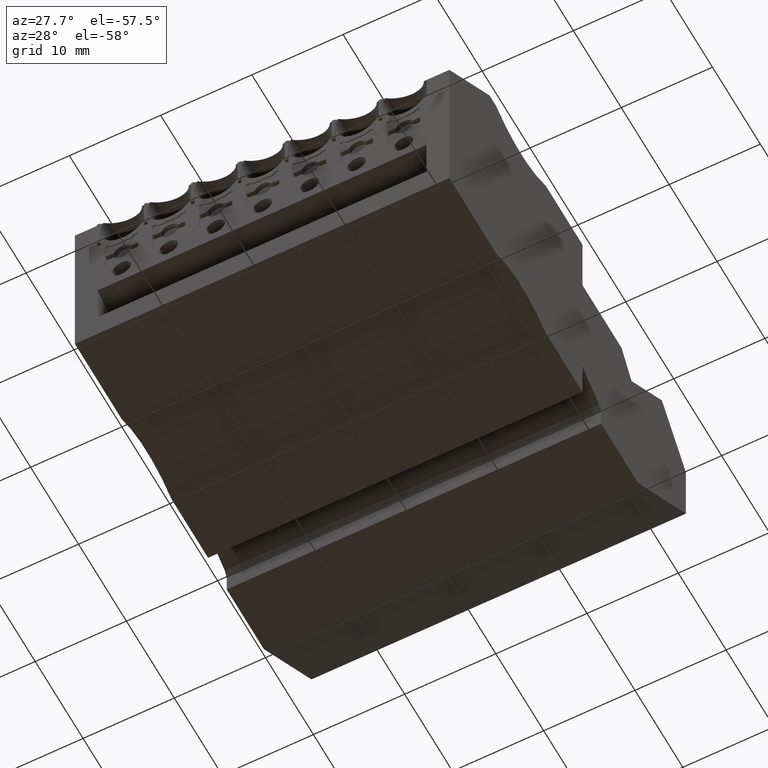
[diagram: clean part render]
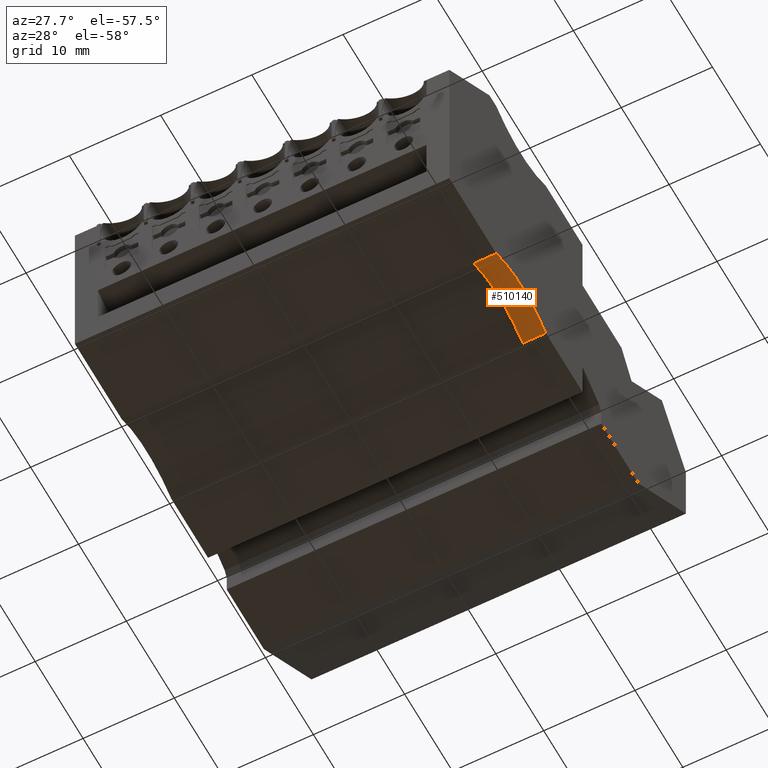
[diagram: same view with one face highlighted and labeled with its STEP entity id]
A machine part, auxiliary view. The second image highlights one B-rep face of the part: STEP entity #510140.
In plain terms, the highlighted cylindrical surface (partial cylindrical patch) has radius 10 mm, axis along (-1, -0, 0).
Its self-contained STEP definition (entity closure, byte-faithful):
#21610=CARTESIAN_POINT('',(430.260883745075,670.934347664516,
104.169999998335));
#21620=VERTEX_POINT('',#21610);
#21650=CARTESIAN_POINT('',(435.425728081343,662.371381882728,
104.169999996031));
#21660=DIRECTION('',(2.3809661542687E-10,4.1220396710112E-10,1.));
#21670=DIRECTION('',(1.,-1.20456372654242E-9,-2.38096614930344E-10));
#21680=AXIS2_PLACEMENT_3D('',#21650,#21660,#21670);
#21690=CIRCLE('',#21680,10.);
#21700=CARTESIAN_POINT('',(440.590572441332,670.934347652073,
104.169999997992));
#21710=VERTEX_POINT('',#21700);
#21720=EDGE_CURVE('',#21710,#21620,#21690,.T.);
#508750=CARTESIAN_POINT('',(440.590572462107,670.934347639186,
106.669999990763));
#508760=VERTEX_POINT('',#508750);
#508790=CARTESIAN_POINT('',(435.425728081938,662.371381883758,
106.669999995402));
#508800=DIRECTION('',(1.28100595517667E-10,4.64504649617954E-10,1.));
#508810=DIRECTION('',(0.707106782058739,0.707106780314356,
-4.19035115678159E-10));
#508820=AXIS2_PLACEMENT_3D('',#508790,#508800,#508810);
#508830=CIRCLE('',#508820,10.);
#508840=CARTESIAN_POINT('',(430.260883722372,670.934347651613,
106.669999992086));
#508850=VERTEX_POINT('',#508840);
#508860=EDGE_CURVE('',#508760,#508850,#508830,.T.);
#509650=CARTESIAN_POINT('',(435.425728081343,662.371381882728,
104.169999991406));
#509660=DIRECTION('',(-2.3809661542687E-10,-4.1220396710112E-10,-1.));
#509670=DIRECTION('',(1.,-1.20456367103126E-9,-2.38096347605881E-10));
#509680=AXIS2_PLACEMENT_3D('',#509650,#509660,#509670);
#509690=CYLINDRICAL_SURFACE('',#509680,10.);
#509700=CARTESIAN_POINT('',(432.124069181778,670.93434764837,
104.169999992563));
#509710=DIRECTION('',(1.20456578035086E-9,1.,-3.99255701708136E-10));
#509720=DIRECTION('',(1.,-1.20456578045502E-9,-2.60886165655907E-10));
#509730=AXIS2_PLACEMENT_3D('',#509700,#509710,#509720);
#509740=PLANE('',#509730);
#509750=CARTESIAN_POINT('',(430.26088372183,670.934347650615,
104.16999998911));
#509760=CARTESIAN_POINT('',(430.260883721875,670.934347650698,
104.378333322691));
#509770=CARTESIAN_POINT('',(430.26088372192,670.934347650781,
104.586666656273));
#509780=CARTESIAN_POINT('',(430.260883721966,670.934347650864,
104.794999989854));
#509790=CARTESIAN_POINT('',(430.260883722011,670.934347650947,
105.003333323435));
#509800=CARTESIAN_POINT('',(430.260883722056,670.934347651031,
105.211666657017));
#509810=CARTESIAN_POINT('',(430.260883722101,670.934347651114,
105.419999990598));
#509820=CARTESIAN_POINT('',(430.260883722146,670.934347651197,
105.628333324179));
#509830=CARTESIAN_POINT('',(430.260883722191,670.93434765128,
105.836666657761));
#509840=CARTESIAN_POINT('',(430.260883722236,670.934347651363,
106.044999991342));
#509850=CARTESIAN_POINT('',(430.260883722282,670.934347651447,
106.253333324923));
#509860=CARTESIAN_POINT('',(430.260883722327,670.93434765153,
106.461666658505));
#509870=CARTESIAN_POINT('',(430.260883722372,670.934347651613,
106.669999992086));
#509880=B_SPLINE_CURVE_WITH_KNOTS('',3,(#509750,#509760,#509770,#509780,
#509790,#509800,#509810,#509820,#509830,#509840,#509850,#509860,#509870)
,.UNSPECIFIED.,.F.,.F.,(4,3,3,3,4),(0.,0.625000000744052,
1.25000000148812,1.87500000223218,2.50000000297624),.UNSPECIFIED.);
#509890=SURFACE_CURVE('',#509880,(#509690,#509740),.CURVE_3D.);
#509900=EDGE_CURVE('',#21620,#508850,#509890,.T.);
#510030=ORIENTED_EDGE('',*,*,#509900,.F.);
#510040=ORIENTED_EDGE('',*,*,#508860,.T.);
#510050=CARTESIAN_POINT('',(440.590572461512,670.934347638156,
104.169999986647));
#510060=DIRECTION('',(-2.3809661542687E-10,-4.1220396710112E-10,-1.));
#510070=VECTOR('',#510060,1.);
#510080=LINE('',#510050,#510070);
#510090=EDGE_CURVE('',#508760,#21710,#510080,.T.);
#510100=ORIENTED_EDGE('',*,*,#510090,.F.);
#510110=ORIENTED_EDGE('',*,*,#21720,.F.);
#510120=EDGE_LOOP('',(#510110,#510100,#510040,#510030));
#510130=FACE_OUTER_BOUND('',#510120,.T.);
#510140=ADVANCED_FACE('',(#510130),#509690,.F.);